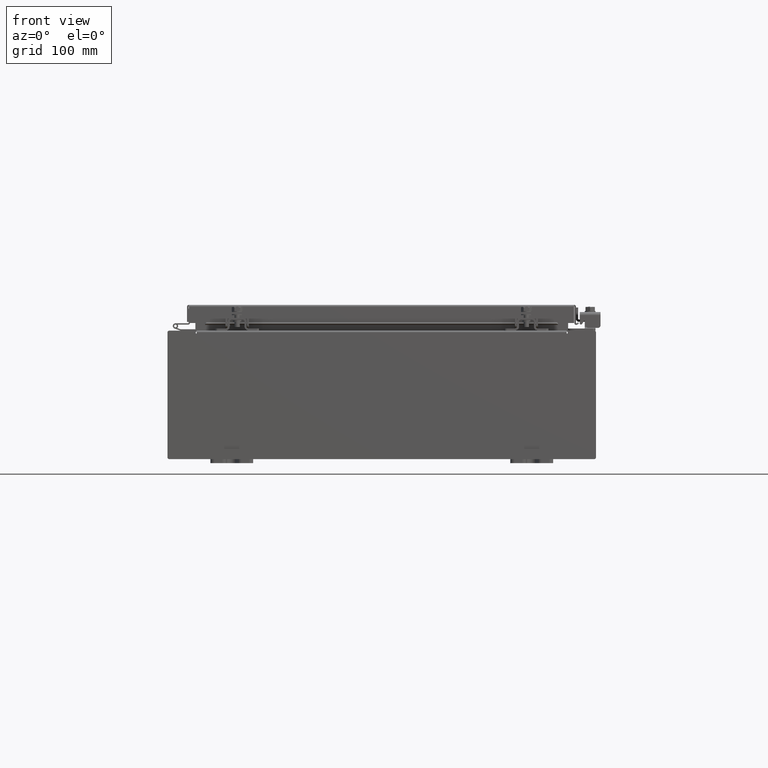
[diagram: clean part render]
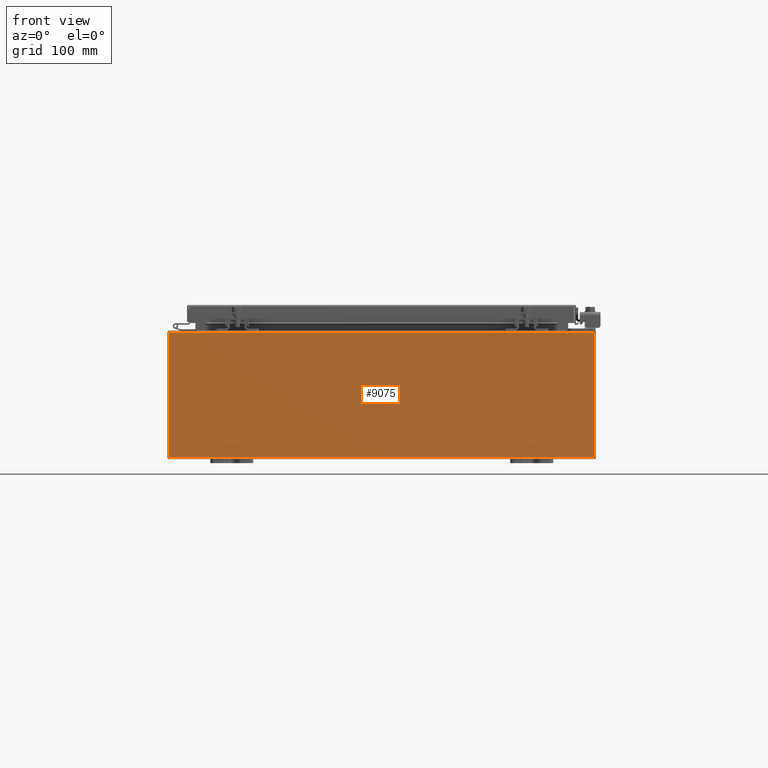
[diagram: same view with one face highlighted and labeled with its STEP entity id]
A machine part, front view. The second image highlights one B-rep face of the part: STEP entity #9075.
In plain terms, the highlighted planar face has unit normal (-0, 1, -0).
Its self-contained STEP definition (entity closure, byte-faithful):
#1007 = CARTESIAN_POINT ( 'NONE',  ( -8.674549999999996400, 0.0000000000000000000, 2.925300000000000500 ) ) ;
#1284 = DIRECTION ( 'NONE',  ( -6.510859170600007400E-014, 0.0000000000000000000, -1.000000000000000000 ) ) ;
#1474 = VECTOR ( 'NONE', #25069, 39.37007874015748100 ) ;
#2256 = LINE ( 'NONE', #5058, #1474 ) ;
#2297 = VERTEX_POINT ( 'NONE', #16074 ) ;
#2343 = VERTEX_POINT ( 'NONE', #28899 ) ;
#2734 = EDGE_LOOP ( 'NONE', ( #27749, #18184, #12734, #27713, #29288, #29064, #16360, #23346, #7162, #19982, #14452, #28520 ) ) ;
#2740 = VERTEX_POINT ( 'NONE', #16484 ) ;
#2743 = VECTOR ( 'NONE', #26922, 39.37007874015748100 ) ;
#2905 = VERTEX_POINT ( 'NONE', #19460 ) ;
#3243 = DIRECTION ( 'NONE',  ( 0.0000000000000000000, -0.0000000000000000000, -1.000000000000000000 ) ) ;
#3926 = CARTESIAN_POINT ( 'NONE',  ( -8.674549999999996400, -0.0000000000000000000, 0.0000000000000000000 ) ) ;
#4291 = VECTOR ( 'NONE', #5130, 39.37007874015748100 ) ;
#4761 = VECTOR ( 'NONE', #21569, 39.37007874015748100 ) ;
#5058 = CARTESIAN_POINT ( 'NONE',  ( -9.925300000000000000, 0.0000000000000000000, 2.925300000000000500 ) ) ;
#5130 = DIRECTION ( 'NONE',  ( 0.0000000000000000000, 0.0000000000000000000, -1.000000000000000000 ) ) ;
#5187 = LINE ( 'NONE', #3926, #23563 ) ;
#5663 = LINE ( 'NONE', #27174, #24824 ) ;
#6098 = VECTOR ( 'NONE', #7480, 39.37007874015748100 ) ;
#6334 = DIRECTION ( 'NONE',  ( 1.000000000000000000, 0.0000000000000000000, 0.0000000000000000000 ) ) ;
#6463 = CARTESIAN_POINT ( 'NONE',  ( -8.637199999999996400, -0.0000000000000000000, 2.874950000000000600 ) ) ;
#6603 = VERTEX_POINT ( 'NONE', #18072 ) ;
#6635 = CARTESIAN_POINT ( 'NONE',  ( -9.925300000000000000, 0.0000000000000000000, -2.925299999999999600 ) ) ;
#6710 = EDGE_CURVE ( 'NONE', #22054, #20357, #13303, .T. ) ;
#6903 = LINE ( 'NONE', #11744, #6098 ) ;
#7162 = ORIENTED_EDGE ( 'NONE', *, *, #23783, .T. ) ;
#7270 = EDGE_CURVE ( 'NONE', #22054, #11765, #24222, .T. ) ;
#7480 = DIRECTION ( 'NONE',  ( 1.000000000000000000, 0.0000000000000000000, 0.0000000000000000000 ) ) ;
#7587 = CIRCLE ( 'NONE', #26092, 0.01867500000000003900 ) ;
#8853 = VECTOR ( 'NONE', #1284, 39.37007874015748100 ) ;
#8997 = CARTESIAN_POINT ( 'NONE',  ( -9.925300000000000000, 0.0000000000000000000, 2.925300000000000500 ) ) ;
#9067 = DIRECTION ( 'NONE',  ( -0.0000000000000000000, 1.000000000000000000, -0.0000000000000000000 ) ) ;
#9075 = ADVANCED_FACE ( 'NONE', ( #29594 ), #23072, .F. ) ;
#9475 = EDGE_CURVE ( 'NONE', #20638, #30089, #6903, .T. ) ;
#9954 = EDGE_CURVE ( 'NONE', #2740, #2343, #25232, .T. ) ;
#10087 = EDGE_CURVE ( 'NONE', #11765, #2905, #26408, .T. ) ;
#10832 = EDGE_CURVE ( 'NONE', #20943, #20357, #5663, .T. ) ;
#10916 = VERTEX_POINT ( 'NONE', #22337 ) ;
#11061 = EDGE_CURVE ( 'NONE', #10916, #20943, #7587, .T. ) ;
#11744 = CARTESIAN_POINT ( 'NONE',  ( -9.925300000000000000, 0.0000000000000000000, 2.925300000000000500 ) ) ;
#11765 = VERTEX_POINT ( 'NONE', #6463 ) ;
#11919 = CARTESIAN_POINT ( 'NONE',  ( 9.925300000000000000, 0.0000000000000000000, 2.925300000000000500 ) ) ;
#12734 = ORIENTED_EDGE ( 'NONE', *, *, #7270, .F. ) ;
#13023 = CARTESIAN_POINT ( 'NONE',  ( 8.655875000000000000, 0.0000000000000000000, 2.874950000000000600 ) ) ;
#13303 = LINE ( 'NONE', #22785, #26627 ) ;
#13708 = CARTESIAN_POINT ( 'NONE',  ( 8.637200000000000000, 0.0000000000000000000, 2.874950000000000600 ) ) ;
#14313 = EDGE_CURVE ( 'NONE', #2905, #30089, #5187, .T. ) ;
#14452 = ORIENTED_EDGE ( 'NONE', *, *, #28597, .T. ) ;
#14969 = EDGE_CURVE ( 'NONE', #2297, #6603, #18036, .T. ) ;
#15351 = CARTESIAN_POINT ( 'NONE',  ( 0.0000000000000000000, 0.0000000000000000000, 0.0000000000000000000 ) ) ;
#15524 = DIRECTION ( 'NONE',  ( 0.0000000000000000000, 0.0000000000000000000, -1.000000000000000000 ) ) ;
#15933 = CARTESIAN_POINT ( 'NONE',  ( -9.925300000000000000, 0.0000000000000000000, 2.925300000000000500 ) ) ;
#16074 = CARTESIAN_POINT ( 'NONE',  ( 9.925300000000000000, 0.0000000000000000000, -2.925299999999999600 ) ) ;
#16360 = ORIENTED_EDGE ( 'NONE', *, *, #29538, .F. ) ;
#16364 = DIRECTION ( 'NONE',  ( 0.0000000000000000000, 0.0000000000000000000, 1.000000000000000000 ) ) ;
#16484 = CARTESIAN_POINT ( 'NONE',  ( 8.674550000000001800, 0.0000000000000000000, 2.925300000000000500 ) ) ;
#18036 = LINE ( 'NONE', #6635, #4761 ) ;
#18072 = CARTESIAN_POINT ( 'NONE',  ( -9.925300000000000000, 0.0000000000000000000, -2.925299999999999600 ) ) ;
#18184 = ORIENTED_EDGE ( 'NONE', *, *, #10087, .F. ) ;
#18971 = CARTESIAN_POINT ( 'NONE',  ( -8.637199999999996400, -0.0000000000000000000, 0.0000000000000000000 ) ) ;
#19460 = CARTESIAN_POINT ( 'NONE',  ( -8.674549999999996400, 0.0000000000000000000, 2.874950000000000600 ) ) ;
#19982 = ORIENTED_EDGE ( 'NONE', *, *, #14969, .T. ) ;
#20357 = VERTEX_POINT ( 'NONE', #30400 ) ;
#20380 = AXIS2_PLACEMENT_3D ( 'NONE', #15351, #21625, #3243 ) ;
#20638 = VERTEX_POINT ( 'NONE', #8997 ) ;
#20943 = VERTEX_POINT ( 'NONE', #13708 ) ;
#21569 = DIRECTION ( 'NONE',  ( -1.000000000000000000, -0.0000000000000000000, -0.0000000000000000000 ) ) ;
#21625 = DIRECTION ( 'NONE',  ( 0.0000000000000000000, -1.000000000000000000, 0.0000000000000000000 ) ) ;
#22054 = VERTEX_POINT ( 'NONE', #25445 ) ;
#22337 = CARTESIAN_POINT ( 'NONE',  ( 8.674550000000000000, 0.0000000000000000000, 2.874950000000000600 ) ) ;
#22785 = CARTESIAN_POINT ( 'NONE',  ( -8.637200000000000000, 1.024442997624098700E-016, 2.912300000000000600 ) ) ;
#23072 = PLANE ( 'NONE',  #20380 ) ;
#23346 = ORIENTED_EDGE ( 'NONE', *, *, #9954, .T. ) ;
#23563 = VECTOR ( 'NONE', #16364, 39.37007874015748100 ) ;
#23783 = EDGE_CURVE ( 'NONE', #2343, #2297, #29380, .T. ) ;
#24026 = CARTESIAN_POINT ( 'NONE',  ( -8.655874999999996400, 0.0000000000000000000, 2.874950000000000600 ) ) ;
#24222 = LINE ( 'NONE', #18971, #4291 ) ;
#24824 = VECTOR ( 'NONE', #29567, 39.37007874015748100 ) ;
#25069 = DIRECTION ( 'NONE',  ( -0.0000000000000000000, -0.0000000000000000000, 1.000000000000000000 ) ) ;
#25232 = LINE ( 'NONE', #15933, #31069 ) ;
#25445 = CARTESIAN_POINT ( 'NONE',  ( -8.637199999999996400, 1.024442997624098700E-016, 2.912300000000000600 ) ) ;
#26092 = AXIS2_PLACEMENT_3D ( 'NONE', #13023, #30513, #15524 ) ;
#26408 = CIRCLE ( 'NONE', #30237, 0.01867500000000003900 ) ;
#26571 = DIRECTION ( 'NONE',  ( 0.0000000000000000000, 0.0000000000000000000, -1.000000000000000000 ) ) ;
#26627 = VECTOR ( 'NONE', #6334, 39.37007874015748100 ) ;
#26922 = DIRECTION ( 'NONE',  ( 0.0000000000000000000, 0.0000000000000000000, -1.000000000000000000 ) ) ;
#27174 = CARTESIAN_POINT ( 'NONE',  ( 8.637200000000000000, 0.0000000000000000000, 0.0000000000000000000 ) ) ;
#27713 = ORIENTED_EDGE ( 'NONE', *, *, #6710, .T. ) ;
#27749 = ORIENTED_EDGE ( 'NONE', *, *, #14313, .F. ) ;
#28520 = ORIENTED_EDGE ( 'NONE', *, *, #9475, .T. ) ;
#28597 = EDGE_CURVE ( 'NONE', #6603, #20638, #2256, .T. ) ;
#28824 = LINE ( 'NONE', #31219, #8853 ) ;
#28899 = CARTESIAN_POINT ( 'NONE',  ( 9.925300000000000000, 0.0000000000000000000, 2.925300000000000500 ) ) ;
#29064 = ORIENTED_EDGE ( 'NONE', *, *, #11061, .F. ) ;
#29288 = ORIENTED_EDGE ( 'NONE', *, *, #10832, .F. ) ;
#29380 = LINE ( 'NONE', #11919, #2743 ) ;
#29538 = EDGE_CURVE ( 'NONE', #2740, #10916, #28824, .T. ) ;
#29567 = DIRECTION ( 'NONE',  ( 0.0000000000000000000, 0.0000000000000000000, 1.000000000000000000 ) ) ;
#29594 = FACE_OUTER_BOUND ( 'NONE', #2734, .T. ) ;
#30089 = VERTEX_POINT ( 'NONE', #1007 ) ;
#30237 = AXIS2_PLACEMENT_3D ( 'NONE', #24026, #9067, #26571 ) ;
#30400 = CARTESIAN_POINT ( 'NONE',  ( 8.637200000000000000, 0.0000000000000000000, 2.912300000000000600 ) ) ;
#30513 = DIRECTION ( 'NONE',  ( -0.0000000000000000000, 1.000000000000000000, -0.0000000000000000000 ) ) ;
#30906 = DIRECTION ( 'NONE',  ( 1.000000000000000000, 0.0000000000000000000, 0.0000000000000000000 ) ) ;
#31069 = VECTOR ( 'NONE', #30906, 39.37007874015748100 ) ;
#31219 = CARTESIAN_POINT ( 'NONE',  ( 8.674549999999813500, -0.0000000000000000000, -5.647877341832707700E-013 ) ) ;